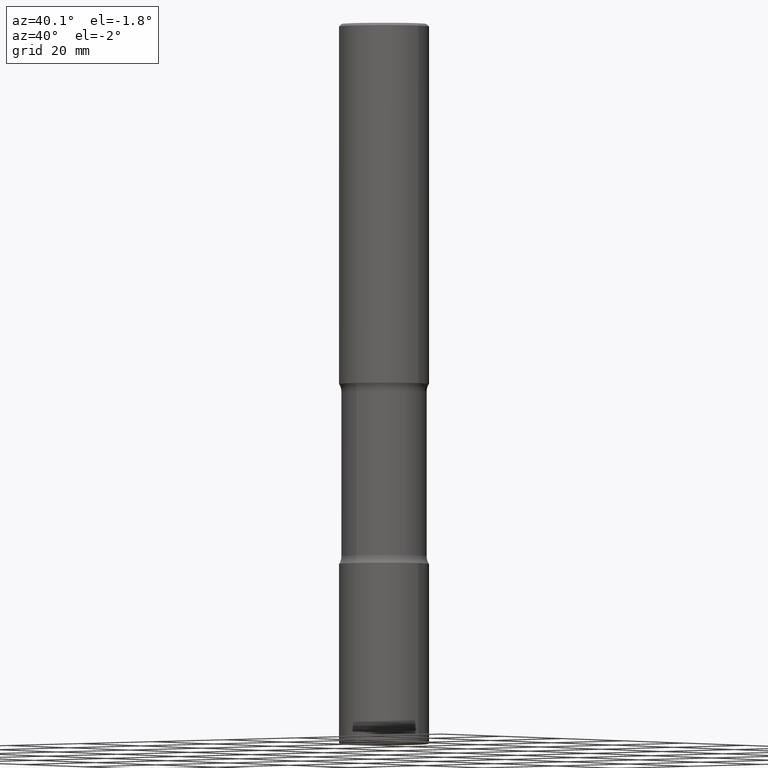
[diagram: clean part render]
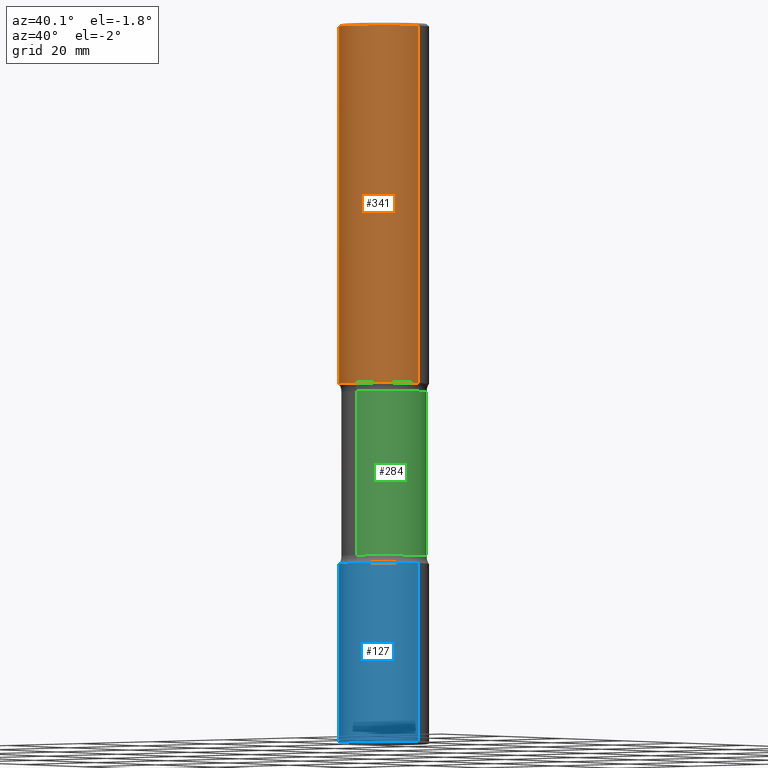
[diagram: same view with three faces highlighted in distinct colors, each labeled with its STEP entity id]
A machine part, auxiliary view with three faces highlighted in distinct colors.
Their STEP definitions:

[orange] entity #341 — the highlighted cylindrical surface (partial cylindrical patch) has radius 9.525 mm, axis along (-0, 0, 1).
#24 = CIRCLE ( 'NONE', #113, 0.3750000000000003886 ) ;
#25 = DIRECTION ( 'NONE',  ( 1.000000000000000000, -6.982962677686266711E-15, 4.876176775795935793E-29 ) ) ;
#27 = DIRECTION ( 'NONE',  ( -2.445468806185136597E-29, 3.491481338843145583E-15, 1.000000000000000000 ) ) ;
#51 = LINE ( 'NONE', #128, #491 ) ;
#67 = CARTESIAN_POINT ( 'NONE',  ( 0.3750000000000001110, -2.642516375941188423E-15, -0.02000000000000006981 ) ) ;
#72 = LINE ( 'NONE', #384, #208 ) ;
#113 = AXIS2_PLACEMENT_3D ( 'NONE', #210, #27, #466 ) ;
#128 = CARTESIAN_POINT ( 'NONE',  ( 0.3750000000000002220, -2.618611004132351594E-15, 1.828566290923477043E-29 ) ) ;
#193 = ORIENTED_EDGE ( 'NONE', *, *, #533, .F. ) ;
#206 = ORIENTED_EDGE ( 'NONE', *, *, #498, .F. ) ;
#208 = VECTOR ( 'NONE', #249, 39.37007874015748143 ) ;
#210 = CARTESIAN_POINT ( 'NONE',  ( 7.336406418555407548E-29, -1.047444401652943320E-14, -2.999999999999999112 ) ) ;
#243 = EDGE_CURVE ( 'NONE', #445, #386, #51, .T. ) ;
#249 = DIRECTION ( 'NONE',  ( -2.445468806185136877E-29, 3.491481338843145188E-15, 1.000000000000000000 ) ) ;
#265 = DIRECTION ( 'NONE',  ( -2.445468806185136877E-29, 3.491481338843145188E-15, 1.000000000000000000 ) ) ;
#277 = FACE_OUTER_BOUND ( 'NONE', #286, .T. ) ;
#286 = EDGE_LOOP ( 'NONE', ( #206, #373, #378, #193 ) ) ;
#335 = CARTESIAN_POINT ( 'NONE',  ( 0.3750000000000003886, -1.309305502066178637E-14, -2.999999999999999112 ) ) ;
#341 = ADVANCED_FACE ( 'NONE', ( #277 ), #410, .T. ) ;
#342 = AXIS2_PLACEMENT_3D ( 'NONE', #414, #499, #25 ) ;
#351 = CIRCLE ( 'NONE', #423, 0.3750000000000001110 ) ;
#373 = ORIENTED_EDGE ( 'NONE', *, *, #464, .T. ) ;
#375 = CARTESIAN_POINT ( 'NONE',  ( 4.890937612370289799E-31, -6.982962677686315028E-17, -0.02000000000000006981 ) ) ;
#378 = ORIENTED_EDGE ( 'NONE', *, *, #243, .T. ) ;
#380 = DIRECTION ( 'NONE',  ( -2.445468806185136597E-29, 3.491481338843145583E-15, 1.000000000000000000 ) ) ;
#384 = CARTESIAN_POINT ( 'NONE',  ( -0.3750000000000002220, 2.664535259100377275E-15, -1.844600658845590719E-29 ) ) ;
#386 = VERTEX_POINT ( 'NONE', #67 ) ;
#408 = VERTEX_POINT ( 'NONE', #444 ) ;
#410 = CYLINDRICAL_SURFACE ( 'NONE', #342, 0.3750000000000002220 ) ;
#414 = CARTESIAN_POINT ( 'NONE',  ( 0.000000000000000000, 0.000000000000000000, 0.000000000000000000 ) ) ;
#416 = VERTEX_POINT ( 'NONE', #492 ) ;
#423 = AXIS2_PLACEMENT_3D ( 'NONE', #375, #380, #546 ) ;
#444 = CARTESIAN_POINT ( 'NONE',  ( -0.3750000000000001110, 2.548781377355487113E-15, -0.02000000000000006981 ) ) ;
#445 = VERTEX_POINT ( 'NONE', #335 ) ;
#464 = EDGE_CURVE ( 'NONE', #416, #445, #24, .T. ) ;
#466 = DIRECTION ( 'NONE',  ( 1.000000000000000000, -6.982962677686265922E-15, 0.000000000000000000 ) ) ;
#491 = VECTOR ( 'NONE', #265, 39.37007874015748143 ) ;
#492 = CARTESIAN_POINT ( 'NONE',  ( -0.3750000000000003886, -2.607601562552767029E-15, -2.999999999999999112 ) ) ;
#498 = EDGE_CURVE ( 'NONE', #416, #408, #72, .T. ) ;
#499 = DIRECTION ( 'NONE',  ( -2.445468806185136597E-29, 3.491481338843145583E-15, 1.000000000000000000 ) ) ;
#533 = EDGE_CURVE ( 'NONE', #408, #386, #351, .T. ) ;
#546 = DIRECTION ( 'NONE',  ( 1.000000000000000000, -6.982962677686265922E-15, 0.000000000000000000 ) ) ;

[blue] entity #127 — the highlighted cylindrical surface (partial cylindrical patch) has radius 9.525 mm, axis along (-0, 0, 1).
#11 = CARTESIAN_POINT ( 'NONE',  ( -0.3750000000000006661, -1.824943796057005747E-14, -5.989999999999999325 ) ) ;
#14 = CARTESIAN_POINT ( 'NONE',  ( 0.3750000000000003886, -1.833027702892650691E-14, -4.499999999999999112 ) ) ;
#22 = VERTEX_POINT ( 'NONE', #300 ) ;
#35 = CIRCLE ( 'NONE', #273, 0.3750000000000002776 ) ;
#39 = DIRECTION ( 'NONE',  ( 1.000000000000000000, -6.982962677686267499E-15, 0.000000000000000000 ) ) ;
#56 = DIRECTION ( 'NONE',  ( -2.445468806185136877E-29, 3.491481338843145188E-15, 1.000000000000000000 ) ) ;
#98 = DIRECTION ( 'NONE',  ( -2.445468806185136597E-29, 3.491481338843145583E-15, 1.000000000000000000 ) ) ;
#105 = VECTOR ( 'NONE', #510, 39.37007874015748143 ) ;
#127 = ADVANCED_FACE ( 'NONE', ( #422 ), #552, .T. ) ;
#165 = CARTESIAN_POINT ( 'NONE',  ( 0.000000000000000000, 0.000000000000000000, 0.000000000000000000 ) ) ;
#170 = LINE ( 'NONE', #343, #105 ) ;
#175 = CARTESIAN_POINT ( 'NONE',  ( 1.100460962783311244E-28, -1.571166602479415374E-14, -4.499999999999999112 ) ) ;
#190 = CIRCLE ( 'NONE', #484, 0.3750000000000003886 ) ;
#191 = EDGE_CURVE ( 'NONE', #22, #332, #190, .T. ) ;
#196 = VERTEX_POINT ( 'NONE', #11 ) ;
#214 = CARTESIAN_POINT ( 'NONE',  ( 1.464835814904896579E-28, -2.091397321967043948E-14, -5.989999999999999325 ) ) ;
#233 = DIRECTION ( 'NONE',  ( 1.000000000000000000, -6.982962677686265922E-15, 4.876176775795935793E-29 ) ) ;
#236 = AXIS2_PLACEMENT_3D ( 'NONE', #165, #360, #233 ) ;
#241 = CARTESIAN_POINT ( 'NONE',  ( 0.3750000000000003886, -2.618611004132352383E-15, 1.828566290923477884E-29 ) ) ;
#268 = DIRECTION ( 'NONE',  ( 1.000000000000000000, -6.982962677686265922E-15, 0.000000000000000000 ) ) ;
#273 = AXIS2_PLACEMENT_3D ( 'NONE', #214, #548, #39 ) ;
#300 = CARTESIAN_POINT ( 'NONE',  ( -0.3750000000000003886, -1.564828436313191776E-14, -4.499999999999999112 ) ) ;
#309 = EDGE_CURVE ( 'NONE', #494, #332, #542, .T. ) ;
#332 = VERTEX_POINT ( 'NONE', #14 ) ;
#343 = CARTESIAN_POINT ( 'NONE',  ( -0.3750000000000003886, 2.664535259100378458E-15, -1.844600658845591560E-29 ) ) ;
#360 = DIRECTION ( 'NONE',  ( -2.445468806185136597E-29, 3.491481338843145583E-15, 1.000000000000000000 ) ) ;
#370 = ORIENTED_EDGE ( 'NONE', *, *, #191, .F. ) ;
#421 = ORIENTED_EDGE ( 'NONE', *, *, #471, .F. ) ;
#422 = FACE_OUTER_BOUND ( 'NONE', #553, .T. ) ;
#449 = ORIENTED_EDGE ( 'NONE', *, *, #515, .T. ) ;
#457 = CARTESIAN_POINT ( 'NONE',  ( 0.3750000000000006661, -2.353258422380279265E-14, -5.989999999999999325 ) ) ;
#471 = EDGE_CURVE ( 'NONE', #196, #22, #170, .T. ) ;
#484 = AXIS2_PLACEMENT_3D ( 'NONE', #175, #98, #268 ) ;
#494 = VERTEX_POINT ( 'NONE', #457 ) ;
#501 = ORIENTED_EDGE ( 'NONE', *, *, #309, .T. ) ;
#510 = DIRECTION ( 'NONE',  ( -2.445468806185136877E-29, 3.491481338843145188E-15, 1.000000000000000000 ) ) ;
#515 = EDGE_CURVE ( 'NONE', #196, #494, #35, .T. ) ;
#542 = LINE ( 'NONE', #241, #560 ) ;
#548 = DIRECTION ( 'NONE',  ( -2.445468806185136597E-29, 3.491481338843145583E-15, 1.000000000000000000 ) ) ;
#552 = CYLINDRICAL_SURFACE ( 'NONE', #236, 0.3750000000000003886 ) ;
#553 = EDGE_LOOP ( 'NONE', ( #421, #449, #501, #370 ) ) ;
#560 = VECTOR ( 'NONE', #56, 39.37007874015748143 ) ;

[green] entity #284 — the highlighted cylindrical surface (partial cylindrical patch) has radius 9.0488 mm, axis along (0, -0, -1).
#9 = ORIENTED_EDGE ( 'NONE', *, *, #508, .T. ) ;
#20 = EDGE_CURVE ( 'NONE', #459, #148, #41, .T. ) ;
#38 = ORIENTED_EDGE ( 'NONE', *, *, #20, .F. ) ;
#41 = CIRCLE ( 'NONE', #102, 0.3562500000000000111 ) ;
#45 = DIRECTION ( 'NONE',  ( 2.508247471065963170E-29, -3.401578717594097873E-15, -1.000000000000000000 ) ) ;
#66 = ORIENTED_EDGE ( 'NONE', *, *, #324, .F. ) ;
#70 = VERTEX_POINT ( 'NONE', #217 ) ;
#71 = VERTEX_POINT ( 'NONE', #376 ) ;
#80 = AXIS2_PLACEMENT_3D ( 'NONE', #387, #555, #290 ) ;
#102 = AXIS2_PLACEMENT_3D ( 'NONE', #517, #116, #429 ) ;
#114 = DIRECTION ( 'NONE',  ( 2.508247471065963170E-29, -3.401578717594097873E-15, -1.000000000000000000 ) ) ;
#116 = DIRECTION ( 'NONE',  ( 2.508247471065963170E-29, -3.401578717594097873E-15, -1.000000000000000000 ) ) ;
#136 = FACE_OUTER_BOUND ( 'NONE', #496, .T. ) ;
#148 = VERTEX_POINT ( 'NONE', #347 ) ;
#187 = CARTESIAN_POINT ( 'NONE',  ( 1.476698083443205790E-28, -2.081403410118529621E-14, -5.999999999999999112 ) ) ;
#195 = LINE ( 'NONE', #282, #314 ) ;
#216 = LINE ( 'NONE', #252, #281 ) ;
#217 = CARTESIAN_POINT ( 'NONE',  ( 2.487680453925806274E-15, 0.3562499999999891309, -3.065847835955330503 ) ) ;
#252 = CARTESIAN_POINT ( 'NONE',  ( -2.444052411705960129E-15, -0.3562500000000208278, -5.999999999999998224 ) ) ;
#281 = VECTOR ( 'NONE', #114, 39.37007874015748143 ) ;
#282 = CARTESIAN_POINT ( 'NONE',  ( 2.487680453925879638E-15, 0.3562499999999791389, -6.000000000000000888 ) ) ;
#284 = ADVANCED_FACE ( 'NONE', ( #136 ), #312, .T. ) ;
#290 = DIRECTION ( 'NONE',  ( 6.982962677686265133E-15, 1.000000000000000000, -3.067338098149347905E-15 ) ) ;
#298 = AXIS2_PLACEMENT_3D ( 'NONE', #187, #45, #442 ) ;
#312 = CYLINDRICAL_SURFACE ( 'NONE', #298, 0.3562500000000000111 ) ;
#314 = VECTOR ( 'NONE', #412, 39.37007874015748143 ) ;
#324 = EDGE_CURVE ( 'NONE', #70, #459, #195, .T. ) ;
#347 = CARTESIAN_POINT ( 'NONE',  ( -2.508369580435107128E-15, -0.3562500000000154987, -4.434152164044668609 ) ) ;
#376 = CARTESIAN_POINT ( 'NONE',  ( -2.508369580435144205E-15, -0.3562500000000108358, -3.065847835955328282 ) ) ;
#387 = CARTESIAN_POINT ( 'NONE',  ( 7.407401089244291879E-29, -1.083328454578828421E-14, -3.065847835955329614 ) ) ;
#412 = DIRECTION ( 'NONE',  ( 2.508247471065963170E-29, -3.401578717594097873E-15, -1.000000000000000000 ) ) ;
#429 = DIRECTION ( 'NONE',  ( 6.982962677686265133E-15, 1.000000000000000000, -3.067338098149347905E-15 ) ) ;
#430 = EDGE_CURVE ( 'NONE', #70, #71, #439, .T. ) ;
#439 = CIRCLE ( 'NONE', #80, 0.3562500000000000111 ) ;
#442 = DIRECTION ( 'NONE',  ( 6.982962677686265133E-15, 1.000000000000000000, -3.067338098149347905E-15 ) ) ;
#459 = VERTEX_POINT ( 'NONE', #513 ) ;
#467 = ORIENTED_EDGE ( 'NONE', *, *, #430, .T. ) ;
#496 = EDGE_LOOP ( 'NONE', ( #467, #9, #38, #66 ) ) ;
#508 = EDGE_CURVE ( 'NONE', #71, #148, #216, .T. ) ;
#513 = CARTESIAN_POINT ( 'NONE',  ( 2.487680453925840195E-15, 0.3562499999999844680, -4.434152164044670386 ) ) ;
#517 = CARTESIAN_POINT ( 'NONE',  ( 1.083944695982298980E-28, -1.548767942740887449E-14, -4.434152164044669497 ) ) ;
#555 = DIRECTION ( 'NONE',  ( 2.508247471065963170E-29, -3.401578717594097873E-15, -1.000000000000000000 ) ) ;